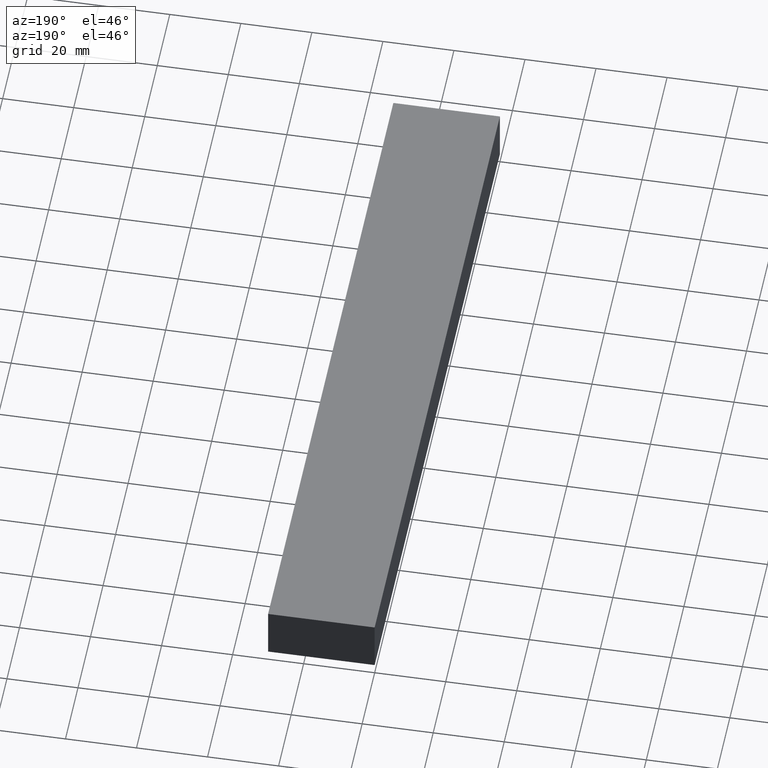
[diagram: clean part render]
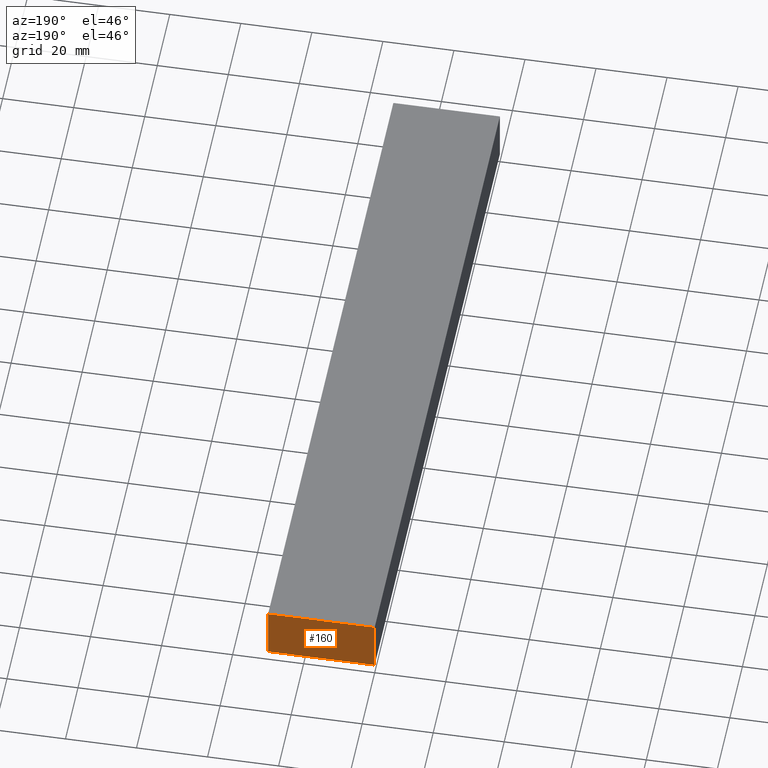
[diagram: same view with one face highlighted and labeled with its STEP entity id]
A machine part, auxiliary view. The second image highlights one B-rep face of the part: STEP entity #160.
In plain terms, the highlighted planar face has unit normal (0, 1, 0).
Its self-contained STEP definition (entity closure, byte-faithful):
#2 = EDGE_CURVE ( 'NONE', #203, #104, #120, .T. ) ;
#7 = VECTOR ( 'NONE', #90, 1000.000000000000000 ) ;
#8 = VECTOR ( 'NONE', #150, 1000.000000000000000 ) ;
#13 = PLANE ( 'NONE',  #81 ) ;
#14 = ORIENTED_EDGE ( 'NONE', *, *, #2, .F. ) ;
#35 = ORIENTED_EDGE ( 'NONE', *, *, #129, .T. ) ;
#60 = EDGE_CURVE ( 'NONE', #83, #203, #62, .T. ) ;
#62 = LINE ( 'NONE', #165, #7 ) ;
#68 = FACE_OUTER_BOUND ( 'NONE', #188, .T. ) ;
#71 = CARTESIAN_POINT ( 'NONE',  ( 0.0000000000000000000, 200.0000000000000000, 10.00000000000000000 ) ) ;
#74 = CARTESIAN_POINT ( 'NONE',  ( 30.00000000000000000, 200.0000000000000000, -5.000000000000000000 ) ) ;
#81 = AXIS2_PLACEMENT_3D ( 'NONE', #167, #85, #119 ) ;
#83 = VERTEX_POINT ( 'NONE', #180 ) ;
#85 = DIRECTION ( 'NONE',  ( 0.0000000000000000000, 1.000000000000000000, 0.0000000000000000000 ) ) ;
#87 = VERTEX_POINT ( 'NONE', #136 ) ;
#90 = DIRECTION ( 'NONE',  ( 0.0000000000000000000, 0.0000000000000000000, 1.000000000000000000 ) ) ;
#93 = CARTESIAN_POINT ( 'NONE',  ( 30.00000000000000000, 200.0000000000000000, 10.00000000000000000 ) ) ;
#104 = VERTEX_POINT ( 'NONE', #71 ) ;
#119 = DIRECTION ( 'NONE',  ( 0.0000000000000000000, 0.0000000000000000000, 1.000000000000000000 ) ) ;
#120 = LINE ( 'NONE', #125, #224 ) ;
#125 = CARTESIAN_POINT ( 'NONE',  ( 30.00000000000000000, 200.0000000000000000, 10.00000000000000000 ) ) ;
#127 = ORIENTED_EDGE ( 'NONE', *, *, #60, .F. ) ;
#129 = EDGE_CURVE ( 'NONE', #87, #104, #158, .T. ) ;
#136 = CARTESIAN_POINT ( 'NONE',  ( 0.0000000000000000000, 200.0000000000000000, -5.000000000000000000 ) ) ;
#150 = DIRECTION ( 'NONE',  ( 0.0000000000000000000, 0.0000000000000000000, 1.000000000000000000 ) ) ;
#152 = LINE ( 'NONE', #74, #201 ) ;
#158 = LINE ( 'NONE', #213, #8 ) ;
#160 = ADVANCED_FACE ( 'NONE', ( #68 ), #13, .T. ) ;
#165 = CARTESIAN_POINT ( 'NONE',  ( 30.00000000000000000, 200.0000000000000000, -5.000000000000000000 ) ) ;
#167 = CARTESIAN_POINT ( 'NONE',  ( 30.00000000000000000, 200.0000000000000000, -5.000000000000000000 ) ) ;
#171 = ORIENTED_EDGE ( 'NONE', *, *, #197, .T. ) ;
#180 = CARTESIAN_POINT ( 'NONE',  ( 30.00000000000000000, 200.0000000000000000, -5.000000000000000000 ) ) ;
#184 = DIRECTION ( 'NONE',  ( -1.000000000000000000, 0.0000000000000000000, 0.0000000000000000000 ) ) ;
#188 = EDGE_LOOP ( 'NONE', ( #14, #127, #171, #35 ) ) ;
#197 = EDGE_CURVE ( 'NONE', #83, #87, #152, .T. ) ;
#201 = VECTOR ( 'NONE', #184, 1000.000000000000000 ) ;
#203 = VERTEX_POINT ( 'NONE', #93 ) ;
#213 = CARTESIAN_POINT ( 'NONE',  ( 0.0000000000000000000, 200.0000000000000000, -5.000000000000000000 ) ) ;
#224 = VECTOR ( 'NONE', #228, 1000.000000000000000 ) ;
#228 = DIRECTION ( 'NONE',  ( -1.000000000000000000, 0.0000000000000000000, 0.0000000000000000000 ) ) ;